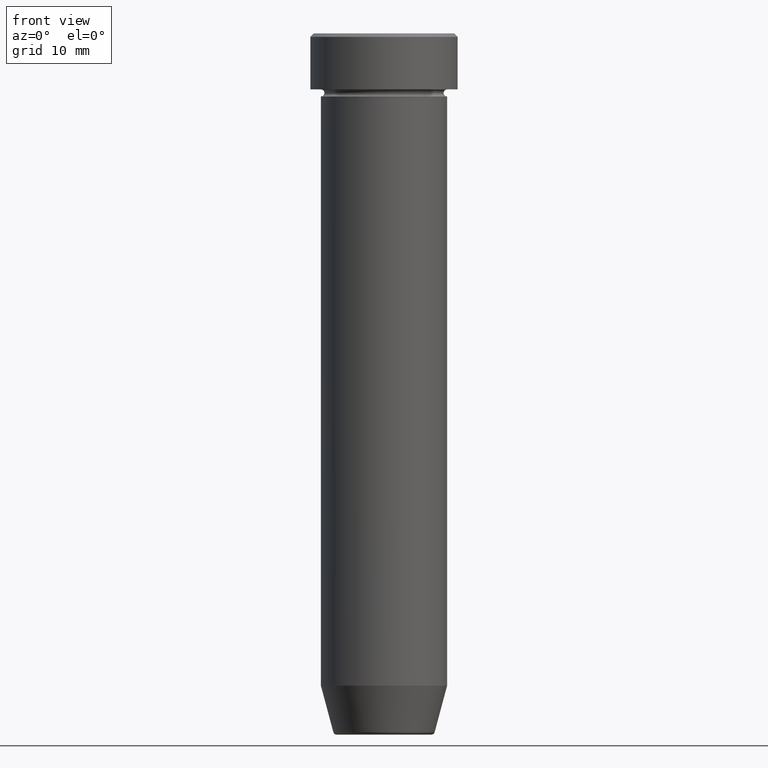
[diagram: clean part render]
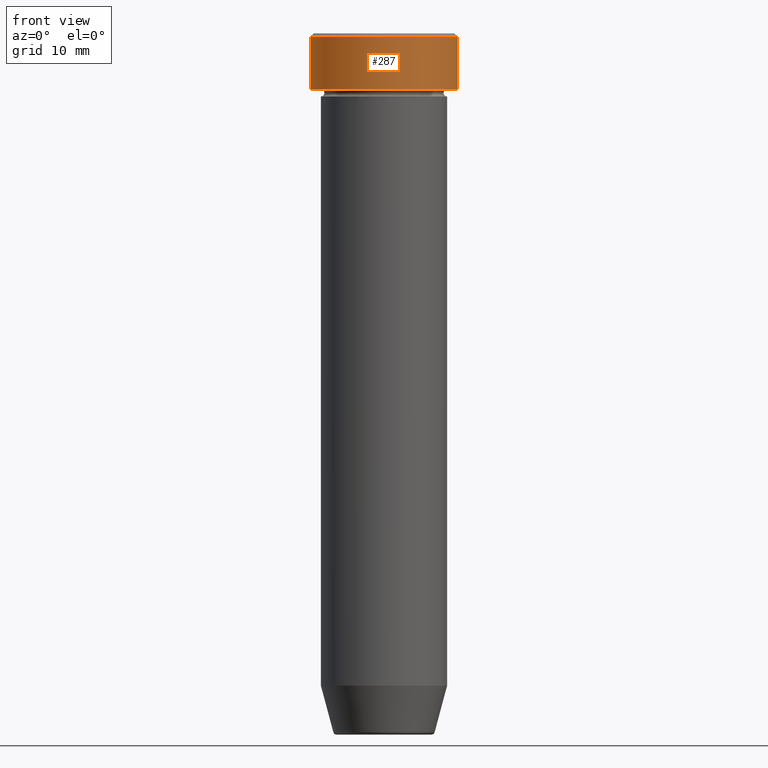
[diagram: same view with one face highlighted and labeled with its STEP entity id]
A machine part, front view. The second image highlights one B-rep face of the part: STEP entity #287.
In plain terms, the highlighted cylindrical surface (partial cylindrical patch) has radius 10.5 mm, axis along (-0, -0, 1).
Its self-contained STEP definition (entity closure, byte-faithful):
#3 = EDGE_CURVE ( 'NONE', #588, #248, #458, .T. ) ;
#37 = AXIS2_PLACEMENT_3D ( 'NONE', #581, #172, #211 ) ;
#38 = CARTESIAN_POINT ( 'NONE',  ( 10.50000000000000000, 0.000000000000000000, -0.5000000000000023315 ) ) ;
#71 = EDGE_CURVE ( 'NONE', #261, #539, #591, .T. ) ;
#108 = ORIENTED_EDGE ( 'NONE', *, *, #477, .T. ) ;
#172 = DIRECTION ( 'NONE',  ( 0.000000000000000000, 0.000000000000000000, -1.000000000000000000 ) ) ;
#181 = DIRECTION ( 'NONE',  ( -0.000000000000000000, -0.000000000000000000, 1.000000000000000000 ) ) ;
#195 = DIRECTION ( 'NONE',  ( -0.000000000000000000, -0.000000000000000000, 1.000000000000000000 ) ) ;
#203 = CARTESIAN_POINT ( 'NONE',  ( -10.50000000000000000, 1.285879139104720831E-15, -0.5000000000000023315 ) ) ;
#207 = CARTESIAN_POINT ( 'NONE',  ( 10.50000000000000000, 0.000000000000000000, -8.000000000000000000 ) ) ;
#211 = DIRECTION ( 'NONE',  ( 1.000000000000000000, 0.000000000000000000, 0.000000000000000000 ) ) ;
#213 = DIRECTION ( 'NONE',  ( -0.000000000000000000, -0.000000000000000000, 1.000000000000000000 ) ) ;
#215 = CYLINDRICAL_SURFACE ( 'NONE', #401, 10.50000000000000000 ) ;
#223 = ORIENTED_EDGE ( 'NONE', *, *, #3, .F. ) ;
#234 = CIRCLE ( 'NONE', #37, 10.50000000000000000 ) ;
#248 = VERTEX_POINT ( 'NONE', #203 ) ;
#249 = VECTOR ( 'NONE', #181, 1000.000000000000000 ) ;
#254 = FACE_OUTER_BOUND ( 'NONE', #354, .T. ) ;
#261 = VERTEX_POINT ( 'NONE', #207 ) ;
#287 = ADVANCED_FACE ( 'NONE', ( #254 ), #215, .T. ) ;
#312 = CARTESIAN_POINT ( 'NONE',  ( 0.000000000000000000, 0.000000000000000000, 0.000000000000000000 ) ) ;
#354 = EDGE_LOOP ( 'NONE', ( #223, #519, #497, #108 ) ) ;
#376 = DIRECTION ( 'NONE',  ( -0.000000000000000000, -0.000000000000000000, 1.000000000000000000 ) ) ;
#378 = CARTESIAN_POINT ( 'NONE',  ( 10.50000000000000000, 0.000000000000000000, 0.000000000000000000 ) ) ;
#401 = AXIS2_PLACEMENT_3D ( 'NONE', #312, #213, #453 ) ;
#403 = CIRCLE ( 'NONE', #442, 10.50000000000000000 ) ;
#411 = CARTESIAN_POINT ( 'NONE',  ( -10.50000000000000000, 1.285879139104720831E-15, 0.000000000000000000 ) ) ;
#424 = CARTESIAN_POINT ( 'NONE',  ( 0.000000000000000000, 0.000000000000000000, -8.000000000000000000 ) ) ;
#442 = AXIS2_PLACEMENT_3D ( 'NONE', #424, #376, #554 ) ;
#453 = DIRECTION ( 'NONE',  ( 1.000000000000000000, 0.000000000000000000, 0.000000000000000000 ) ) ;
#458 = LINE ( 'NONE', #411, #249 ) ;
#460 = VECTOR ( 'NONE', #195, 1000.000000000000000 ) ;
#477 = EDGE_CURVE ( 'NONE', #539, #248, #234, .T. ) ;
#497 = ORIENTED_EDGE ( 'NONE', *, *, #71, .T. ) ;
#519 = ORIENTED_EDGE ( 'NONE', *, *, #559, .T. ) ;
#539 = VERTEX_POINT ( 'NONE', #38 ) ;
#545 = CARTESIAN_POINT ( 'NONE',  ( -10.50000000000000000, 1.285879139104720831E-15, -8.000000000000000000 ) ) ;
#554 = DIRECTION ( 'NONE',  ( 1.000000000000000000, 0.000000000000000000, 0.000000000000000000 ) ) ;
#559 = EDGE_CURVE ( 'NONE', #588, #261, #403, .T. ) ;
#581 = CARTESIAN_POINT ( 'NONE',  ( 0.000000000000000000, 0.000000000000000000, -0.5000000000000023315 ) ) ;
#588 = VERTEX_POINT ( 'NONE', #545 ) ;
#591 = LINE ( 'NONE', #378, #460 ) ;